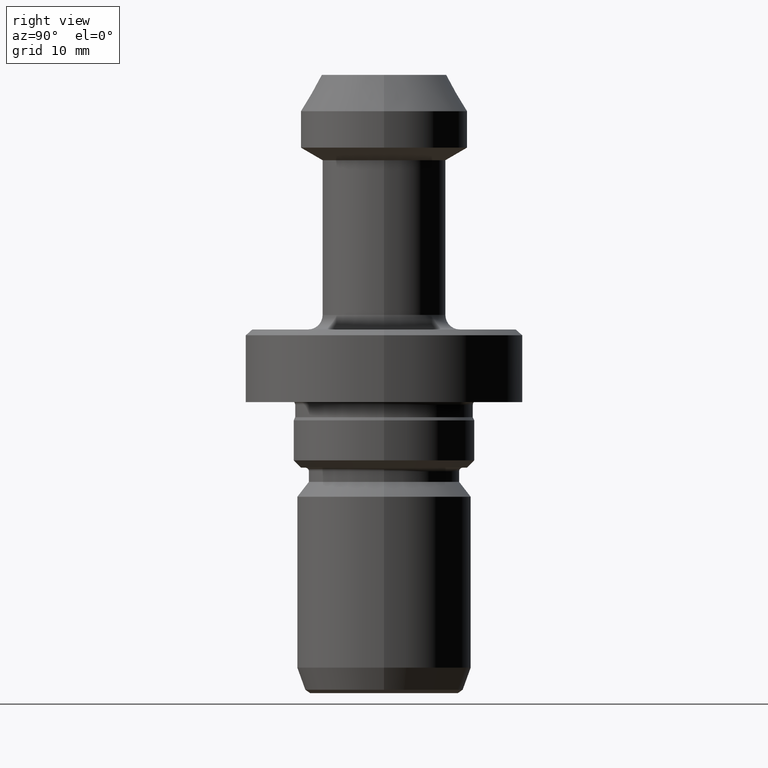
[diagram: clean part render]
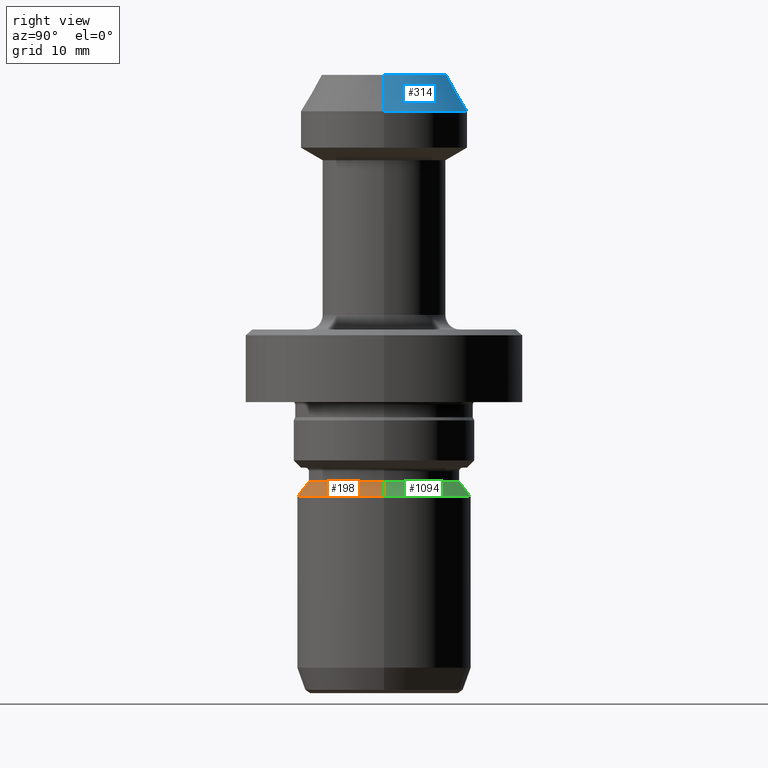
[diagram: same view with three faces highlighted in distinct colors, each labeled with its STEP entity id]
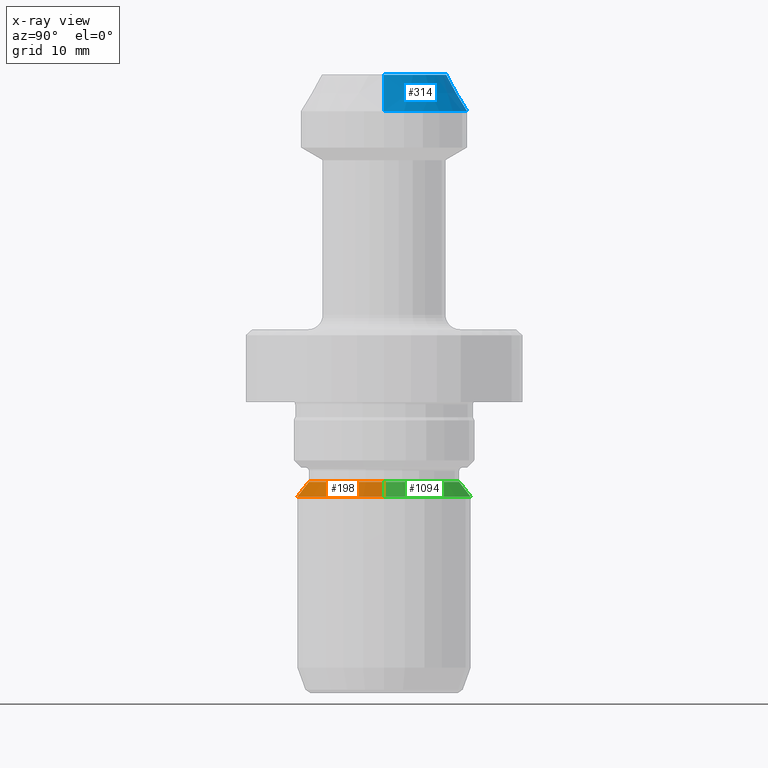
[diagram: x-ray of the same camera — body ghosted, the three highlighted faces saturated]
A machine part, right view with three faces highlighted in distinct colors.
The next image is the same camera in x-ray (body ghosted, the three faces saturated) — at least one of them is partly hidden behind the body in this view.
Their STEP definitions:

[orange] entity #198 — the highlighted conical surface has half-angle 37.972 deg.
#37 = CIRCLE ( 'NONE', #334, 10.40000000000000000 ) ;
#38 = VERTEX_POINT ( 'NONE', #447 ) ;
#61 = EDGE_CURVE ( 'NONE', #38, #151, #206, .T. ) ;
#86 = CARTESIAN_POINT ( 'NONE',  ( -12.00000000000000000, 0.0000000000000000000, -57.99999999999997900 ) ) ;
#114 = DIRECTION ( 'NONE',  ( 1.000000000000000000, 0.0000000000000000000, 0.0000000000000000000 ) ) ;
#134 = VERTEX_POINT ( 'NONE', #413 ) ;
#151 = VERTEX_POINT ( 'NONE', #1053 ) ;
#172 = VECTOR ( 'NONE', #969, 999.9999999999998900 ) ;
#190 = ORIENTED_EDGE ( 'NONE', *, *, #356, .T. ) ;
#198 = ADVANCED_FACE ( 'NONE', ( #756 ), #245, .T. ) ;
#206 = LINE ( 'NONE', #1150, #172 ) ;
#245 = CONICAL_SURFACE ( 'NONE', #437, 12.00000000000000000, 0.6627295078929894600 ) ;
#274 = CARTESIAN_POINT ( 'NONE',  ( -10.40000000000000000, 0.0000000000000000000, -55.94999999999997400 ) ) ;
#295 = EDGE_CURVE ( 'NONE', #718, #134, #636, .T. ) ;
#309 = CARTESIAN_POINT ( 'NONE',  ( 0.0000000000000000000, 0.0000000000000000000, -55.94999999999997400 ) ) ;
#334 = AXIS2_PLACEMENT_3D ( 'NONE', #309, #380, #114 ) ;
#356 = EDGE_CURVE ( 'NONE', #134, #151, #798, .T. ) ;
#380 = DIRECTION ( 'NONE',  ( -0.0000000000000000000, -0.0000000000000000000, 1.000000000000000000 ) ) ;
#413 = CARTESIAN_POINT ( 'NONE',  ( -12.00000000000000000, 1.469576158976823900E-015, -57.99999999999997900 ) ) ;
#437 = AXIS2_PLACEMENT_3D ( 'NONE', #913, #627, #704 ) ;
#447 = CARTESIAN_POINT ( 'NONE',  ( 10.40000000000000000, 1.371604415045035500E-015, -55.94999999999997400 ) ) ;
#548 = EDGE_LOOP ( 'NONE', ( #933, #598, #618, #190 ) ) ;
#598 = ORIENTED_EDGE ( 'NONE', *, *, #746, .F. ) ;
#618 = ORIENTED_EDGE ( 'NONE', *, *, #295, .T. ) ;
#627 = DIRECTION ( 'NONE',  ( 0.0000000000000000000, 0.0000000000000000000, -1.000000000000000000 ) ) ;
#636 = LINE ( 'NONE', #86, #885 ) ;
#655 = CARTESIAN_POINT ( 'NONE',  ( 0.0000000000000000000, 0.0000000000000000000, -57.99999999999997900 ) ) ;
#667 = DIRECTION ( 'NONE',  ( 1.000000000000000000, 0.0000000000000000000, 0.0000000000000000000 ) ) ;
#704 = DIRECTION ( 'NONE',  ( -1.000000000000000000, 0.0000000000000000000, 0.0000000000000000000 ) ) ;
#715 = DIRECTION ( 'NONE',  ( -0.6152708554029808800, 0.0000000000000000000, -0.7883157834850728100 ) ) ;
#718 = VERTEX_POINT ( 'NONE', #274 ) ;
#746 = EDGE_CURVE ( 'NONE', #718, #38, #37, .T. ) ;
#756 = FACE_OUTER_BOUND ( 'NONE', #548, .T. ) ;
#798 = CIRCLE ( 'NONE', #1093, 12.00000000000000000 ) ;
#885 = VECTOR ( 'NONE', #715, 999.9999999999998900 ) ;
#913 = CARTESIAN_POINT ( 'NONE',  ( 0.0000000000000000000, 0.0000000000000000000, -57.99999999999997900 ) ) ;
#933 = ORIENTED_EDGE ( 'NONE', *, *, #61, .F. ) ;
#947 = DIRECTION ( 'NONE',  ( -0.0000000000000000000, -0.0000000000000000000, 1.000000000000000000 ) ) ;
#969 = DIRECTION ( 'NONE',  ( 0.6152708554029808800, 7.534894836779146700E-017, -0.7883157834850728100 ) ) ;
#1053 = CARTESIAN_POINT ( 'NONE',  ( 12.00000000000000000, 0.0000000000000000000, -57.99999999999997900 ) ) ;
#1093 = AXIS2_PLACEMENT_3D ( 'NONE', #655, #947, #667 ) ;
#1150 = CARTESIAN_POINT ( 'NONE',  ( 12.00000000000000000, 1.469576158976823900E-015, -57.99999999999997900 ) ) ;

[blue] entity #314 — the highlighted conical surface has half-angle 30 deg.
#11 = DIRECTION ( 'NONE',  ( 0.4999999999999981100, 6.123233995736742600E-017, -0.8660254037844397100 ) ) ;
#60 = AXIS2_PLACEMENT_3D ( 'NONE', #188, #347, #1099 ) ;
#81 = VECTOR ( 'NONE', #124, 1000.000000000000000 ) ;
#97 = DIRECTION ( 'NONE',  ( -1.000000000000000000, 0.0000000000000000000, 0.0000000000000000000 ) ) ;
#124 = DIRECTION ( 'NONE',  ( -0.4999999999999981100, 0.0000000000000000000, -0.8660254037844397100 ) ) ;
#137 = EDGE_CURVE ( 'NONE', #1039, #275, #1059, .T. ) ;
#171 = DIRECTION ( 'NONE',  ( 0.0000000000000000000, 0.0000000000000000000, -1.000000000000000000 ) ) ;
#188 = CARTESIAN_POINT ( 'NONE',  ( 0.0000000000000000000, 0.0000000000000000000, 0.0000000000000000000 ) ) ;
#212 = ORIENTED_EDGE ( 'NONE', *, *, #610, .F. ) ;
#275 = VERTEX_POINT ( 'NONE', #528 ) ;
#279 = ORIENTED_EDGE ( 'NONE', *, *, #659, .T. ) ;
#314 = ADVANCED_FACE ( 'NONE', ( #857 ), #827, .T. ) ;
#347 = DIRECTION ( 'NONE',  ( -0.0000000000000000000, -0.0000000000000000000, 1.000000000000000000 ) ) ;
#365 = AXIS2_PLACEMENT_3D ( 'NONE', #435, #171, #97 ) ;
#383 = AXIS2_PLACEMENT_3D ( 'NONE', #421, #963, #1050 ) ;
#396 = EDGE_CURVE ( 'NONE', #843, #275, #1130, .T. ) ;
#410 = CIRCLE ( 'NONE', #60, 8.613248654051886900 ) ;
#421 = CARTESIAN_POINT ( 'NONE',  ( 0.0000000000000000000, 0.0000000000000000000, -4.999999999999999100 ) ) ;
#435 = CARTESIAN_POINT ( 'NONE',  ( 0.0000000000000000000, 0.0000000000000000000, -4.999999999999999100 ) ) ;
#486 = ORIENTED_EDGE ( 'NONE', *, *, #137, .T. ) ;
#528 = CARTESIAN_POINT ( 'NONE',  ( -11.50000000000000000, 1.408343819019456200E-015, -4.999999999999999100 ) ) ;
#531 = VERTEX_POINT ( 'NONE', #619 ) ;
#583 = CARTESIAN_POINT ( 'NONE',  ( -11.50000000000000000, 0.0000000000000000000, -4.999999999999999100 ) ) ;
#592 = ORIENTED_EDGE ( 'NONE', *, *, #396, .F. ) ;
#610 = EDGE_CURVE ( 'NONE', #531, #843, #410, .T. ) ;
#619 = CARTESIAN_POINT ( 'NONE',  ( 8.613248654051886900, 1.231581279231972700E-015, 0.0000000000000000000 ) ) ;
#626 = CARTESIAN_POINT ( 'NONE',  ( 11.50000000000000000, 1.408343819019456200E-015, -4.999999999999999100 ) ) ;
#659 = EDGE_CURVE ( 'NONE', #531, #1039, #812, .T. ) ;
#783 = CARTESIAN_POINT ( 'NONE',  ( 11.50000000000000000, 0.0000000000000000000, -4.999999999999999100 ) ) ;
#812 = LINE ( 'NONE', #626, #1032 ) ;
#825 = EDGE_LOOP ( 'NONE', ( #212, #279, #486, #592 ) ) ;
#827 = CONICAL_SURFACE ( 'NONE', #365, 11.50000000000000000, 0.5235987755982967100 ) ;
#843 = VERTEX_POINT ( 'NONE', #1023 ) ;
#857 = FACE_OUTER_BOUND ( 'NONE', #825, .T. ) ;
#963 = DIRECTION ( 'NONE',  ( -0.0000000000000000000, -0.0000000000000000000, 1.000000000000000000 ) ) ;
#1023 = CARTESIAN_POINT ( 'NONE',  ( -8.613248654051886900, 0.0000000000000000000, 0.0000000000000000000 ) ) ;
#1032 = VECTOR ( 'NONE', #11, 1000.000000000000000 ) ;
#1039 = VERTEX_POINT ( 'NONE', #783 ) ;
#1050 = DIRECTION ( 'NONE',  ( 1.000000000000000000, 0.0000000000000000000, 0.0000000000000000000 ) ) ;
#1059 = CIRCLE ( 'NONE', #383, 11.50000000000000000 ) ;
#1099 = DIRECTION ( 'NONE',  ( 1.000000000000000000, 0.0000000000000000000, 0.0000000000000000000 ) ) ;
#1130 = LINE ( 'NONE', #583, #81 ) ;

[green] entity #1094 — the highlighted conical surface has half-angle 37.972 deg.
#38 = VERTEX_POINT ( 'NONE', #447 ) ;
#48 = DIRECTION ( 'NONE',  ( 1.000000000000000000, 0.0000000000000000000, 0.0000000000000000000 ) ) ;
#61 = EDGE_CURVE ( 'NONE', #38, #151, #206, .T. ) ;
#86 = CARTESIAN_POINT ( 'NONE',  ( -12.00000000000000000, 0.0000000000000000000, -57.99999999999997900 ) ) ;
#88 = DIRECTION ( 'NONE',  ( -1.000000000000000000, 0.0000000000000000000, 0.0000000000000000000 ) ) ;
#120 = FACE_OUTER_BOUND ( 'NONE', #1018, .T. ) ;
#134 = VERTEX_POINT ( 'NONE', #413 ) ;
#151 = VERTEX_POINT ( 'NONE', #1053 ) ;
#168 = ORIENTED_EDGE ( 'NONE', *, *, #61, .T. ) ;
#172 = VECTOR ( 'NONE', #969, 999.9999999999998900 ) ;
#206 = LINE ( 'NONE', #1150, #172 ) ;
#274 = CARTESIAN_POINT ( 'NONE',  ( -10.40000000000000000, 0.0000000000000000000, -55.94999999999997400 ) ) ;
#295 = EDGE_CURVE ( 'NONE', #718, #134, #636, .T. ) ;
#312 = AXIS2_PLACEMENT_3D ( 'NONE', #496, #329, #48 ) ;
#329 = DIRECTION ( 'NONE',  ( -0.0000000000000000000, -0.0000000000000000000, 1.000000000000000000 ) ) ;
#377 = CARTESIAN_POINT ( 'NONE',  ( 0.0000000000000000000, 0.0000000000000000000, -57.99999999999997900 ) ) ;
#392 = AXIS2_PLACEMENT_3D ( 'NONE', #377, #1017, #88 ) ;
#413 = CARTESIAN_POINT ( 'NONE',  ( -12.00000000000000000, 1.469576158976823900E-015, -57.99999999999997900 ) ) ;
#447 = CARTESIAN_POINT ( 'NONE',  ( 10.40000000000000000, 1.371604415045035500E-015, -55.94999999999997400 ) ) ;
#496 = CARTESIAN_POINT ( 'NONE',  ( 0.0000000000000000000, 0.0000000000000000000, -55.94999999999997400 ) ) ;
#569 = DIRECTION ( 'NONE',  ( -0.0000000000000000000, -0.0000000000000000000, 1.000000000000000000 ) ) ;
#636 = LINE ( 'NONE', #86, #885 ) ;
#662 = CIRCLE ( 'NONE', #938, 12.00000000000000000 ) ;
#709 = ORIENTED_EDGE ( 'NONE', *, *, #295, .F. ) ;
#715 = DIRECTION ( 'NONE',  ( -0.6152708554029808800, 0.0000000000000000000, -0.7883157834850728100 ) ) ;
#718 = VERTEX_POINT ( 'NONE', #274 ) ;
#739 = CARTESIAN_POINT ( 'NONE',  ( 0.0000000000000000000, 0.0000000000000000000, -57.99999999999997900 ) ) ;
#740 = CIRCLE ( 'NONE', #312, 10.40000000000000000 ) ;
#802 = EDGE_CURVE ( 'NONE', #151, #134, #662, .T. ) ;
#845 = DIRECTION ( 'NONE',  ( 1.000000000000000000, 0.0000000000000000000, 0.0000000000000000000 ) ) ;
#885 = VECTOR ( 'NONE', #715, 999.9999999999998900 ) ;
#938 = AXIS2_PLACEMENT_3D ( 'NONE', #739, #569, #845 ) ;
#944 = ORIENTED_EDGE ( 'NONE', *, *, #802, .T. ) ;
#966 = EDGE_CURVE ( 'NONE', #38, #718, #740, .T. ) ;
#969 = DIRECTION ( 'NONE',  ( 0.6152708554029808800, 7.534894836779146700E-017, -0.7883157834850728100 ) ) ;
#1017 = DIRECTION ( 'NONE',  ( 0.0000000000000000000, 0.0000000000000000000, -1.000000000000000000 ) ) ;
#1018 = EDGE_LOOP ( 'NONE', ( #1152, #168, #944, #709 ) ) ;
#1053 = CARTESIAN_POINT ( 'NONE',  ( 12.00000000000000000, 0.0000000000000000000, -57.99999999999997900 ) ) ;
#1058 = CONICAL_SURFACE ( 'NONE', #392, 12.00000000000000000, 0.6627295078929894600 ) ;
#1094 = ADVANCED_FACE ( 'NONE', ( #120 ), #1058, .T. ) ;
#1150 = CARTESIAN_POINT ( 'NONE',  ( 12.00000000000000000, 1.469576158976823900E-015, -57.99999999999997900 ) ) ;
#1152 = ORIENTED_EDGE ( 'NONE', *, *, #966, .F. ) ;